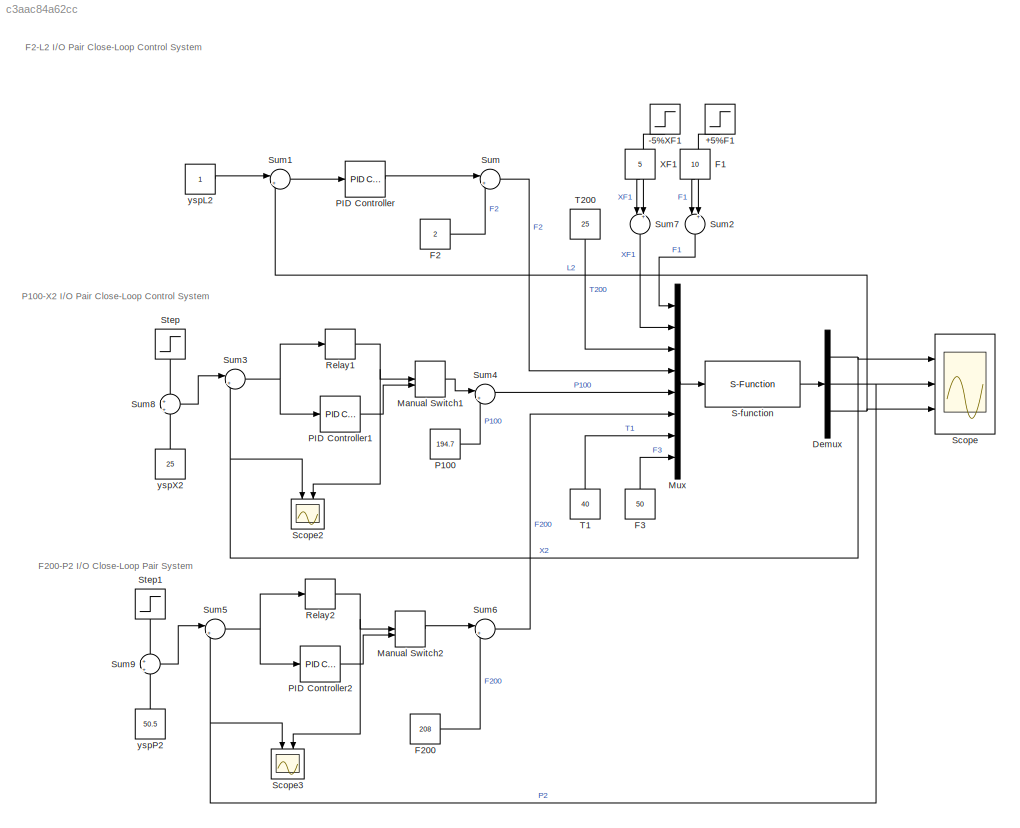
MODEL slx_c3aac84a62cc
KIND model
CONFIG AbsTol = auto
CONFIG EnableMultiTasking = off
CONFIG FixedStep = auto
CONFIG MaxStep = auto
CONFIG MinStep = auto
CONFIG RelTol = 1e-3
CONFIG SampleTimeConstraint = Unconstrained
CONFIG SolverName = VariableStepAuto
CONFIG StartTime = 0.0
CONFIG StopTime = 1000
BLOCK [Step] +5%F1
  After = 10*0.05
  Commented = on
  NameLocation = top
  SampleTime = 0
  Time = 10
BLOCK [Step] -5%XF1
  After = -5*0.05
  Commented = on
  NameLocation = top
  SampleTime = 0
  Time = 300
BLOCK [Demux] Demux
  Outputs = 3
  Ports = [1, 3]
BLOCK [Constant] F1
  NameLocation = top
  Value = 10
BLOCK [Constant] F2
  Value = 2
BLOCK [Constant] F200
  Value = 208
BLOCK [Constant] F3
  Value = 50
BLOCK [ManualSwitch] Manual Switch1
  CurrentSetting = 0
BLOCK [ManualSwitch] Manual Switch2
  CurrentSetting = 0
BLOCK [Mux] Mux
  DisplayOption = bar
  Inputs = 8
  Ports = [8, 1]
BLOCK [Constant] P100
  Value = 194.7
BLOCK [Reference] PID Controller  REF=pid_lib/PID Controller
  Ports = [1, 1]
  SourceBlock = pid_lib/PID Controller
  SourceProductBaseCode = SL
  SourceType = PID 1dof
BLOCK [Reference] PID Controller1  REF=pid_lib/PID Controller
  Ports = [1, 1]
  SourceBlock = pid_lib/PID Controller
  SourceProductBaseCode = SL
  SourceType = PID 1dof
BLOCK [Reference] PID Controller2  REF=pid_lib/PID Controller
  Ports = [1, 1]
  SourceBlock = pid_lib/PID Controller
  SourceProductBaseCode = SL
  SourceType = PID 1dof
BLOCK [Relay] Relay1
  OffOutputValue = -10
  OffSwitchValue = -1
  OnOutputValue = 10
  OnSwitchValue = 1
BLOCK [Relay] Relay2
  OffOutputValue = 20
  OffSwitchValue = -1
  OnOutputValue = -20
  OnSwitchValue = 1
BLOCK [S-Function] S-function
  EnableBusSupport = off
  FunctionName = evapmod_s
  Ports = [1, 1]
  SFcnIsStateOwnerBlock = off
  SFunctionDeploymentMode = off
BLOCK [Scope] Scope
  Floating = off
  NumInputPorts = 3
  Ports = [3]
  ScopeSpecificationString = Simulink.scopes.TimeScopeBlockCfg('CurrentConfiguration', extmgr.ConfigurationSet(extmgr.Configuration('Core','General UI',true),extmgr.Configuration('Core','Source UI',true),extmgr.Configuration('Sources','WiredSimulink',true),extmgr.Configuration('Visuals','Time Domain',true,'SerializedDisplays',{struct('MinYLimReal','24.99989','MaxYLimReal','25.00101','YLabelReal','','MinYLimMag','24.99989','Ma...<+3074ch>
BLOCK [Scope] Scope2
  Floating = off
  NameLocation = left
  NumInputPorts = 2
  Ports = [2]
  ScopeSpecificationString = Simulink.scopes.TimeScopeBlockCfg('CurrentConfiguration', extmgr.ConfigurationSet(extmgr.Configuration('Core','General UI',true),extmgr.Configuration('Core','Source UI',true),extmgr.Configuration('Sources','WiredSimulink',true,'DataLoggingVariableName','ScopeData2'),extmgr.Configuration('Visuals','Time Domain',true,'SerializedDisplays',{struct('MinYLimReal','-20.125','MaxYLimReal','31.125','YLabel...<+1412ch>
BLOCK [Scope] Scope3
  Floating = off
  NameLocation = left
  NumInputPorts = 2
  Ports = [2]
  ScopeSpecificationString = Simulink.scopes.TimeScopeBlockCfg('CurrentConfiguration', extmgr.ConfigurationSet(extmgr.Configuration('Core','General UI',true),extmgr.Configuration('Core','Source UI',true),extmgr.Configuration('Sources','WiredSimulink',true,'DataLoggingVariableName','ScopeData3'),extmgr.Configuration('Visuals','Time Domain',true,'SerializedDisplays',{struct('MinYLimReal','-28.9375','MaxYLimReal','60.4375','YLab...<+1472ch>
BLOCK [Step] Step
  After = 25*0.05
  Commented = on
  NameLocation = left
  SampleTime = 0
  Time = 10
BLOCK [Step] Step1
  After = 50.5*0.05
  Commented = on
  NameLocation = left
  SampleTime = 0
  Time = 300
BLOCK [Sum] Sum
  Inputs = |++
  Ports = [2, 1]
BLOCK [Sum] Sum1
  Inputs = |+-
  Ports = [2, 1]
BLOCK [Sum] Sum2
  Inputs = |++
  NameLocation = right
  Ports = [2, 1]
BLOCK [Sum] Sum3
  Inputs = |+-
  Ports = [2, 1]
BLOCK [Sum] Sum4
  Inputs = |++
  Ports = [2, 1]
BLOCK [Sum] Sum5
  Inputs = |+-
  Ports = [2, 1]
BLOCK [Sum] Sum6
  Inputs = |++
  Ports = [2, 1]
BLOCK [Sum] Sum7
  Inputs = |++
  NameLocation = right
  Ports = [2, 1]
BLOCK [Sum] Sum8
  Inputs = +|+
  Ports = [2, 1]
BLOCK [Sum] Sum9
  Inputs = +|+
  Ports = [2, 1]
BLOCK [Constant] T1
  Value = 40
BLOCK [Constant] T200
  NameLocation = top
  Value = 25
BLOCK [Constant] XF1
  NameLocation = top
  Value = 5
BLOCK [Constant] yspL2
BLOCK [Constant] yspP2
  Value = 50.5
BLOCK [Constant] yspX2
  Value = 25
ANNOTATION (root): F2-L2 I/O Pair Close-Loop Control System
ANNOTATION (root): F200-P2 I/O Close-Loop Pair System
ANNOTATION (root): P100-X2 I/O Pair Close-Loop Control System
LINE +5%F1:1 -> Sum2:2
LINE -5%XF1:1 -> Sum7:2
NET Demux:1 -> Scope2:1, Scope:1, Sum3:2
NET Demux:2 -> Scope3:1, Scope:2, Sum5:2
NET Demux:3 -> Scope:3, Sum1:2
LINE F1:1 -> Sum2:1
LINE F200:1 -> Sum6:2
LINE F2:1 -> Sum:2
LINE F3:1 -> Mux:8
LINE Manual Switch1:1 -> Sum4:1
LINE Manual Switch2:1 -> Sum6:1
LINE Mux:1 -> S-function:1
LINE P100:1 -> Sum4:2
LINE PID Controller1:1 -> Manual Switch1:2
LINE PID Controller2:1 -> Manual Switch2:2
LINE PID Controller:1 -> Sum:1
NET Relay1:1 -> Manual Switch1:1, Scope2:2
NET Relay2:1 -> Manual Switch2:1, Scope3:2
LINE S-function:1 -> Demux:1
LINE Step1:1 -> Sum9:1
LINE Step:1 -> Sum8:1
LINE Sum1:1 -> PID Controller:1
LINE Sum2:1 -> Mux:1
NET Sum3:1 -> PID Controller1:1, Relay1:1
LINE Sum4:1 -> Mux:5
NET Sum5:1 -> PID Controller2:1, Relay2:1
LINE Sum6:1 -> Mux:6
LINE Sum7:1 -> Mux:2
LINE Sum8:1 -> Sum3:1
LINE Sum9:1 -> Sum5:1
LINE Sum:1 -> Mux:4
LINE T1:1 -> Mux:7
LINE T200:1 -> Mux:3
LINE XF1:1 -> Sum7:1
LINE yspL2:1 -> Sum1:1
LINE yspP2:1 -> Sum9:2
LINE yspX2:1 -> Sum8:2
note: NET lines group one-source signal fan-out (src -> all destinations, sorted); 1:1 wires keep LINE
